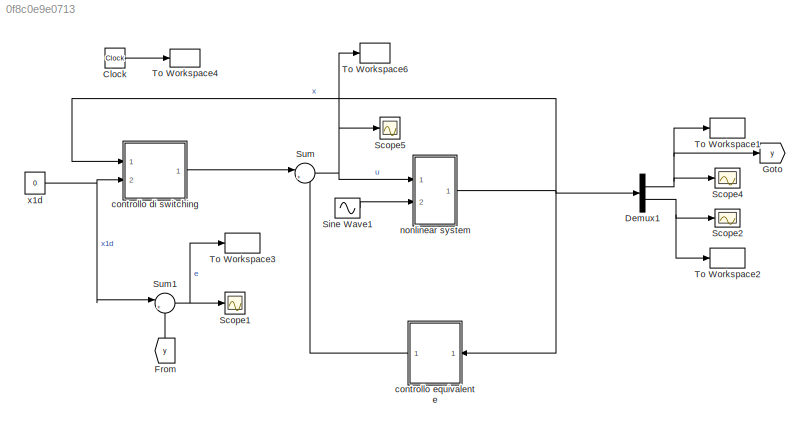
MODEL slx_0f8c0e9e0713
KIND model
CONFIG AbsTol = auto
CONFIG EnableMultiTasking = off
CONFIG FixedStep = auto
CONFIG InitFcn = clear\nclc\n%% dati\nw0 = 5.278;\nalfa1 = w0^2;\nalfa3 = -1.402*w0^2;\nalfa5 = 0.271*w0^2;\nmu1 = 0.086;\nmu3 = 0.1080;\n%% parametri SMC\nmu = 1;\nP = [1 3]';\nx0 = [-1.2 -0.18]';\nxd = [0 0]';\n%disturbi e variazione parametrica\nAd = 0; %ampiezza disturbo\nfd = 2; %fequenza disturbo\nepsilon = 0.01; %boundary layer\nalfa1_hat = 0.8*w0^2
CONFIG MaxStep = 1e-3
CONFIG MinStep = auto
CONFIG RelTol = 1e-3
CONFIG SampleTimeConstraint = Unconstrained
CONFIG SolverName = VariableStepAuto
CONFIG StartTime = 0.0
CONFIG StopTime = 25
BLOCK [Clock] Clock
BLOCK [Demux] Demux1
  Outputs = 2
  Ports = [1, 2]
BLOCK [From] From
  GotoTag = y
  NameLocation = right
BLOCK [Goto] Goto
  GotoTag = y
BLOCK [Scope] Scope1
  Floating = off
  NumInputPorts = 1
  Ports = [1]
  ScopeSpecificationString = Simulink.scopes.TimeScopeBlockCfg('CurrentConfiguration', extmgr.ConfigurationSet(extmgr.Configuration('Core','General UI',true),extmgr.Configuration('Core','Source UI',true),extmgr.Configuration('Sources','WiredSimulink',true,'DataLoggingVariableName','ScopeData3'),extmgr.Configuration('Visuals','Time Domain',true,'SerializedDisplays',{struct('MinYLimReal','-0.15061','MaxYLimReal','1.35114','YLab...<+1414ch>
BLOCK [Scope] Scope2
  Floating = off
  NumInputPorts = 1
  Ports = [1]
  ScopeSpecificationString = Simulink.scopes.TimeScopeBlockCfg('CurrentConfiguration', extmgr.ConfigurationSet(extmgr.Configuration('Core','General UI',true),extmgr.Configuration('Core','Source UI',true),extmgr.Configuration('Sources','WiredSimulink',true,'DataLoggingVariableName','ScopeData1'),extmgr.Configuration('Visuals','Time Domain',true,'SerializedDisplays',{struct('MinYLimReal','-3.40491','MaxYLimReal','4.38552','YLab...<+1440ch>
BLOCK [Scope] Scope4
  Floating = off
  NumInputPorts = 1
  Ports = [1]
  ScopeSpecificationString = Simulink.scopes.TimeScopeBlockCfg('CurrentConfiguration', extmgr.ConfigurationSet(extmgr.Configuration('Core','General UI',true,'FigureColor',[0 0 0]),extmgr.Configuration('Core','Source UI',true),extmgr.Configuration('Sources','WiredSimulink',true,'DataLoggingVariableName','ScopeData1'),extmgr.Configuration('Visuals','Time Domain',true,'SerializedDisplays',{struct('MinYLimReal','-0.07959','MaxYLi...<+1589ch>
BLOCK [Scope] Scope5
  Floating = off
  NumInputPorts = 1
  Ports = [1]
  ScopeSpecificationString = Simulink.scopes.TimeScopeBlockCfg('CurrentConfiguration', extmgr.ConfigurationSet(extmgr.Configuration('Core','General UI',true),extmgr.Configuration('Core','Source UI',true),extmgr.Configuration('Sources','WiredSimulink',true,'DataLoggingVariableName','ScopeData2'),extmgr.Configuration('Visuals','Time Domain',true,'SerializedDisplays',{struct('MinYLimReal','-10.65899','MaxYLimReal','29.60563','YL...<+1439ch>
BLOCK [Sin] Sine Wave1
  Amplitude = Ad
  Frequency = 2
  Ports = [0, 1]
  SampleTime = 0
BLOCK [Sum] Sum
  Inputs = |++
  Ports = [2, 1]
BLOCK [Sum] Sum1
  Inputs = |+-
  Ports = [2, 1]
BLOCK [ToWorkspace] To Workspace1
  FixptAsFi = on
  MaxDataPoints = inf
  Ports = [1]
  SampleTime = -1
  Save2DSignal = 2-D array (concatenate along first dimension)
  VariableName = x1
BLOCK [ToWorkspace] To Workspace2
  FixptAsFi = on
  MaxDataPoints = inf
  Ports = [1]
  SampleTime = -1
  Save2DSignal = 2-D array (concatenate along first dimension)
  VariableName = x2
BLOCK [ToWorkspace] To Workspace3
  FixptAsFi = on
  MaxDataPoints = inf
  Ports = [1]
  SampleTime = -1
  Save2DSignal = 2-D array (concatenate along first dimension)
  VariableName = e
BLOCK [ToWorkspace] To Workspace4
  FixptAsFi = on
  MaxDataPoints = inf
  Ports = [1]
  SampleTime = -1
  Save2DSignal = 2-D array (concatenate along first dimension)
  VariableName = t
BLOCK [ToWorkspace] To Workspace6
  FixptAsFi = on
  MaxDataPoints = inf
  Ports = [1]
  SampleTime = -1
  Save2DSignal = 2-D array (concatenate along first dimension)
  VariableName = u
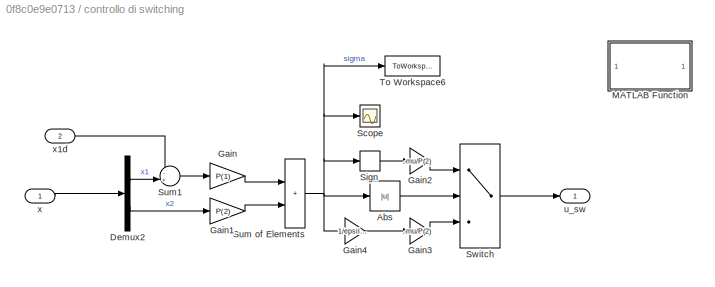
BLOCK [SubSystem] controllo di switching
  Ports = [2, 1]
  RequestExecContextInheritance = off
BLOCK [Abs] controllo di switching/Abs
  SaturateOnIntegerOverflow = off
BLOCK [Demux] controllo di switching/Demux2
  Outputs = 2
  Ports = [1, 2]
BLOCK [Gain] controllo di switching/Gain
  Gain = P(1)
BLOCK [Gain] controllo di switching/Gain1
  Gain = P(2)
BLOCK [Gain] controllo di switching/Gain2
  Gain = -mu/P(2)
BLOCK [Gain] controllo di switching/Gain3
  Gain = -mu/P(2)
BLOCK [Gain] controllo di switching/Gain4
  Gain = 1/epsilon
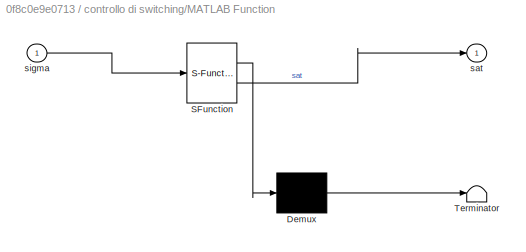
BLOCK [SubSystem] controllo di switching/MATLAB Function
  Commented = on
  ErrorFcn = Stateflow.Translate.translate
  PermitHierarchicalResolution = ExplicitOnly
  Ports = [1, 1]
  RequestExecContextInheritance = off
  SFBlockType = MATLAB Function
  TreatAsAtomicUnit = on
BLOCK [Demux] controllo di switching/MATLAB Function/ Demux 
  Outputs = 1
  Ports = [1, 1]
BLOCK [S-Function] controllo di switching/MATLAB Function/ SFunction 
  EnableBusSupport = on
  FunctionName = sf_sfun
  PortCounts = [1 2]
  Ports = [1, 2]
  SFcnIsStateOwnerBlock = off
  SFunctionDeploymentMode = off
  Tag = Stateflow S-Function 2
BLOCK [Terminator] controllo di switching/MATLAB Function/ Terminator 
BLOCK [Outport] controllo di switching/MATLAB Function/sat
BLOCK [Inport] controllo di switching/MATLAB Function/sigma
BLOCK [Scope] controllo di switching/Scope
  Floating = off
  NumInputPorts = 1
  Ports = [1]
  ScopeSpecificationString = Simulink.scopes.TimeScopeBlockCfg('CurrentConfiguration', extmgr.ConfigurationSet(extmgr.Configuration('Core','General UI',true),extmgr.Configuration('Core','Source UI',true),extmgr.Configuration('Sources','WiredSimulink',true,'DataLoggingVariableName','ScopeData4'),extmgr.Configuration('Visuals','Time Domain',true,'SerializedDisplays',{struct('MinYLimReal','-1.9575','MaxYLimReal','0.2175','YLabel...<+1387ch>
BLOCK [Signum] controllo di switching/Sign
BLOCK [Sum] controllo di switching/Sum of Elements
  IconShape = rectangular
  Ports = [2, 1]
BLOCK [Sum] controllo di switching/Sum1
  Inputs = -+|
  Ports = [2, 1]
BLOCK [Switch] controllo di switching/Switch
  Criteria = u2 > Threshold
  InputSameDT = off
  SaturateOnIntegerOverflow = off
  Threshold = epsilon
BLOCK [ToWorkspace] controllo di switching/To Workspace6
  FixptAsFi = on
  MaxDataPoints = inf
  Ports = [1]
  SampleTime = -1
  Save2DSignal = 2-D array (concatenate along first dimension)
  VariableName = sigma
BLOCK [Outport] controllo di switching/u_sw
BLOCK [Inport] controllo di switching/x
BLOCK [Inport] controllo di switching/x1d
  Port = 2
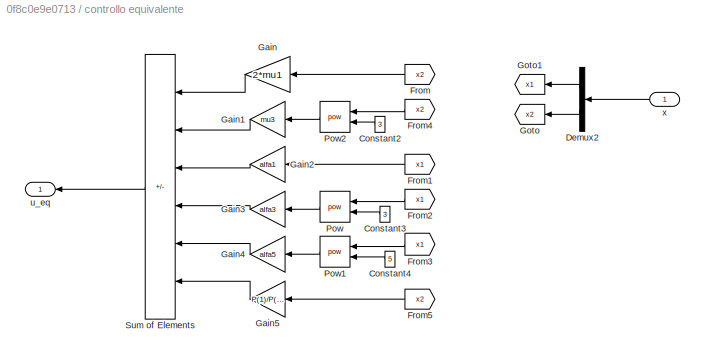
BLOCK [SubSystem] controllo equivalente
  Ports = [1, 1]
  RequestExecContextInheritance = off
BLOCK [Constant] controllo equivalente/Constant2
  NameLocation = top
  Value = 3
BLOCK [Constant] controllo equivalente/Constant3
  NameLocation = top
  Value = 3
BLOCK [Constant] controllo equivalente/Constant4
  NameLocation = top
  Value = 5
BLOCK [Demux] controllo equivalente/Demux2
  NameLocation = top
  Outputs = 2
  Ports = [1, 2]
BLOCK [From] controllo equivalente/From
  GotoTag = x2
  NameLocation = top
BLOCK [From] controllo equivalente/From1
  GotoTag = x1
  NameLocation = top
BLOCK [From] controllo equivalente/From2
  GotoTag = x1
  NameLocation = top
BLOCK [From] controllo equivalente/From3
  GotoTag = x1
  NameLocation = top
BLOCK [From] controllo equivalente/From4
  GotoTag = x2
  NameLocation = top
BLOCK [From] controllo equivalente/From5
  GotoTag = x2
BLOCK [Gain] controllo equivalente/Gain
  Gain = 2*mu1
  NameLocation = top
BLOCK [Gain] controllo equivalente/Gain1
  Gain = mu3
  NameLocation = top
BLOCK [Gain] controllo equivalente/Gain2
  Gain = alfa1
  NameLocation = top
BLOCK [Gain] controllo equivalente/Gain3
  Gain = alfa3
  NameLocation = top
BLOCK [Gain] controllo equivalente/Gain4
  Gain = alfa5
  NameLocation = top
BLOCK [Gain] controllo equivalente/Gain5
  Gain = P(1)/P(2)
  NameLocation = top
BLOCK [Goto] controllo equivalente/Goto
  GotoTag = x2
  NameLocation = top
BLOCK [Goto] controllo equivalente/Goto1
  GotoTag = x1
  NameLocation = top
BLOCK [Math] controllo equivalente/Pow
  NameLocation = top
  Operator = pow
  Ports = [2, 1]
  RndMeth = Zero
BLOCK [Math] controllo equivalente/Pow1
  NameLocation = top
  Operator = pow
  Ports = [2, 1]
  RndMeth = Zero
BLOCK [Math] controllo equivalente/Pow2
  NameLocation = top
  Operator = pow
  Ports = [2, 1]
  RndMeth = Zero
BLOCK [Sum] controllo equivalente/Sum of Elements
  IconShape = rectangular
  Inputs = +++++-
  NameLocation = top
  Ports = [6, 1]
BLOCK [Outport] controllo equivalente/u_eq
BLOCK [Inport] controllo equivalente/x
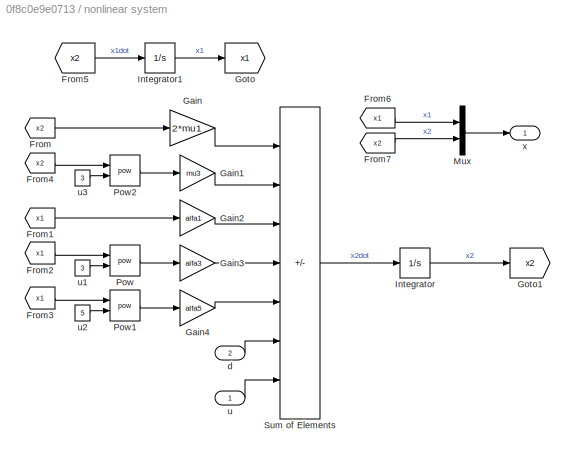
BLOCK [SubSystem] nonlinear system
  Ports = [2, 1]
  RequestExecContextInheritance = off
BLOCK [From] nonlinear system/From
  GotoTag = x2
BLOCK [From] nonlinear system/From1
  GotoTag = x1
BLOCK [From] nonlinear system/From2
  GotoTag = x1
BLOCK [From] nonlinear system/From3
  GotoTag = x1
BLOCK [From] nonlinear system/From4
  GotoTag = x2
BLOCK [From] nonlinear system/From5
  GotoTag = x2
BLOCK [From] nonlinear system/From6
  GotoTag = x1
BLOCK [From] nonlinear system/From7
  GotoTag = x2
BLOCK [Gain] nonlinear system/Gain
  Gain = 2*mu1
BLOCK [Gain] nonlinear system/Gain1
  Gain = mu3
BLOCK [Gain] nonlinear system/Gain2
  Gain = alfa1
BLOCK [Gain] nonlinear system/Gain3
  Gain = alfa3
BLOCK [Gain] nonlinear system/Gain4
  Gain = alfa5
BLOCK [Goto] nonlinear system/Goto
  GotoTag = x1
BLOCK [Goto] nonlinear system/Goto1
  GotoTag = x2
BLOCK [Integrator] nonlinear system/Integrator
  InitialCondition = -0.18
  Ports = [1, 1]
BLOCK [Integrator] nonlinear system/Integrator1
  InitialCondition = -1.2
  Ports = [1, 1]
BLOCK [Mux] nonlinear system/Mux
  DisplayOption = bar
  Inputs = 2
  Ports = [2, 1]
BLOCK [Math] nonlinear system/Pow
  Operator = pow
  Ports = [2, 1]
  RndMeth = Zero
BLOCK [Math] nonlinear system/Pow1
  Operator = pow
  Ports = [2, 1]
  RndMeth = Zero
BLOCK [Math] nonlinear system/Pow2
  Operator = pow
  Ports = [2, 1]
  RndMeth = Zero
BLOCK [Sum] nonlinear system/Sum of Elements
  IconShape = rectangular
  Inputs = -----++
  Ports = [7, 1]
BLOCK [Inport] nonlinear system/d
  Port = 2
BLOCK [Inport] nonlinear system/u
BLOCK [Constant] nonlinear system/u1
  Value = 3
BLOCK [Constant] nonlinear system/u2
  Value = 5
BLOCK [Constant] nonlinear system/u3
  Value = 3
BLOCK [Outport] nonlinear system/x
BLOCK [Constant] x1d
  Value = 0
LINE Clock:1 -> To Workspace4:1
NET Demux1:1 -> Goto:1, Scope4:1, To Workspace1:1
NET Demux1:2 -> Scope2:1, To Workspace2:1
LINE From:1 -> Sum1:2
LINE Sine Wave1:1 -> nonlinear system:2
NET Sum1:1 -> Scope1:1, To Workspace3:1
NET Sum:1 -> Scope5:1, To Workspace6:1, nonlinear system:1
LINE controllo di switching/Abs:1 -> controllo di switching/Switch:2
LINE controllo di switching/Demux2:1 -> controllo di switching/Sum1:2
LINE controllo di switching/Demux2:2 -> controllo di switching/Gain1:1
LINE controllo di switching/Gain1:1 -> controllo di switching/Sum of Elements:2
LINE controllo di switching/Gain2:1 -> controllo di switching/Switch:1
LINE controllo di switching/Gain3:1 -> controllo di switching/Switch:3
LINE controllo di switching/Gain4:1 -> controllo di switching/Gain3:1
LINE controllo di switching/Gain:1 -> controllo di switching/Sum of Elements:1
LINE controllo di switching/Sign:1 -> controllo di switching/Gain2:1
NET controllo di switching/Sum of Elements:1 -> controllo di switching/Abs:1, controllo di switching/Gain4:1, controllo di switching/Scope:1, controllo di switching/Sign:1, controllo di switching/To Workspace6:1
LINE controllo di switching/Sum1:1 -> controllo di switching/Gain:1
LINE controllo di switching/Switch:1 -> controllo di switching/u_sw:1
LINE controllo di switching/x1d:1 -> controllo di switching/Sum1:1
LINE controllo di switching/x:1 -> controllo di switching/Demux2:1
LINE controllo di switching:1 -> Sum:1
LINE controllo equivalente/Constant2:1 -> controllo equivalente/Pow2:2
LINE controllo equivalente/Constant3:1 -> controllo equivalente/Pow:2
LINE controllo equivalente/Constant4:1 -> controllo equivalente/Pow1:2
LINE controllo equivalente/Demux2:1 -> controllo equivalente/Goto1:1
LINE controllo equivalente/Demux2:2 -> controllo equivalente/Goto:1
LINE controllo equivalente/From1:1 -> controllo equivalente/Gain2:1
LINE controllo equivalente/From2:1 -> controllo equivalente/Pow:1
LINE controllo equivalente/From3:1 -> controllo equivalente/Pow1:1
LINE controllo equivalente/From4:1 -> controllo equivalente/Pow2:1
LINE controllo equivalente/From5:1 -> controllo equivalente/Gain5:1
LINE controllo equivalente/From:1 -> controllo equivalente/Gain:1
LINE controllo equivalente/Gain1:1 -> controllo equivalente/Sum of Elements:2
LINE controllo equivalente/Gain2:1 -> controllo equivalente/Sum of Elements:3
LINE controllo equivalente/Gain3:1 -> controllo equivalente/Sum of Elements:4
LINE controllo equivalente/Gain4:1 -> controllo equivalente/Sum of Elements:5
LINE controllo equivalente/Gain5:1 -> controllo equivalente/Sum of Elements:6
LINE controllo equivalente/Gain:1 -> controllo equivalente/Sum of Elements:1
LINE controllo equivalente/Pow1:1 -> controllo equivalente/Gain4:1
LINE controllo equivalente/Pow2:1 -> controllo equivalente/Gain1:1
LINE controllo equivalente/Pow:1 -> controllo equivalente/Gain3:1
LINE controllo equivalente/Sum of Elements:1 -> controllo equivalente/u_eq:1
LINE controllo equivalente/x:1 -> controllo equivalente/Demux2:1
LINE controllo equivalente:1 -> Sum:2
LINE nonlinear system/From1:1 -> nonlinear system/Gain2:1
LINE nonlinear system/From2:1 -> nonlinear system/Pow:1
LINE nonlinear system/From3:1 -> nonlinear system/Pow1:1
LINE nonlinear system/From4:1 -> nonlinear system/Pow2:1
LINE nonlinear system/From5:1 -> nonlinear system/Integrator1:1
LINE nonlinear system/From6:1 -> nonlinear system/Mux:1
LINE nonlinear system/From7:1 -> nonlinear system/Mux:2
LINE nonlinear system/From:1 -> nonlinear system/Gain:1
LINE nonlinear system/Gain1:1 -> nonlinear system/Sum of Elements:2
LINE nonlinear system/Gain2:1 -> nonlinear system/Sum of Elements:3
LINE nonlinear system/Gain3:1 -> nonlinear system/Sum of Elements:4
LINE nonlinear system/Gain4:1 -> nonlinear system/Sum of Elements:5
LINE nonlinear system/Gain:1 -> nonlinear system/Sum of Elements:1
LINE nonlinear system/Integrator1:1 -> nonlinear system/Goto:1
LINE nonlinear system/Integrator:1 -> nonlinear system/Goto1:1
LINE nonlinear system/Mux:1 -> nonlinear system/x:1
LINE nonlinear system/Pow1:1 -> nonlinear system/Gain4:1
LINE nonlinear system/Pow2:1 -> nonlinear system/Gain1:1
LINE nonlinear system/Pow:1 -> nonlinear system/Gain3:1
LINE nonlinear system/Sum of Elements:1 -> nonlinear system/Integrator:1
LINE nonlinear system/d:1 -> nonlinear system/Sum of Elements:6
LINE nonlinear system/u1:1 -> nonlinear system/Pow:2
LINE nonlinear system/u2:1 -> nonlinear system/Pow1:2
LINE nonlinear system/u3:1 -> nonlinear system/Pow2:2
LINE nonlinear system/u:1 -> nonlinear system/Sum of Elements:7
NET nonlinear system:1 -> Demux1:1, controllo di switching:1, controllo equivalente:1
NET x1d:1 -> Sum1:1, controllo di switching:2
note: NET lines group one-source signal fan-out (src -> all destinations, sorted); 1:1 wires keep LINE
CHART controllo di
switching/MATLAB Function states=1 transitions=1
  STATE_LABEL 'eML_blk_kernel()'
  STATE_LABEL 'SCRIPT:\nfunction sat = fcn(sigma)\n\nmu = 20;\np2 = 3;\nepsilon = 0.01;\n\nif sigma > epsilon\n    u = -mu/p2;\n\nelseif sigma < -epsilon\n    u = mu/p2;\n\nelse\n    u = -(mu/p2)*(sigma/epsilon);\n\nend\n\nu\n\nsat = u;\n'
CHART  states=0 transitions=0
